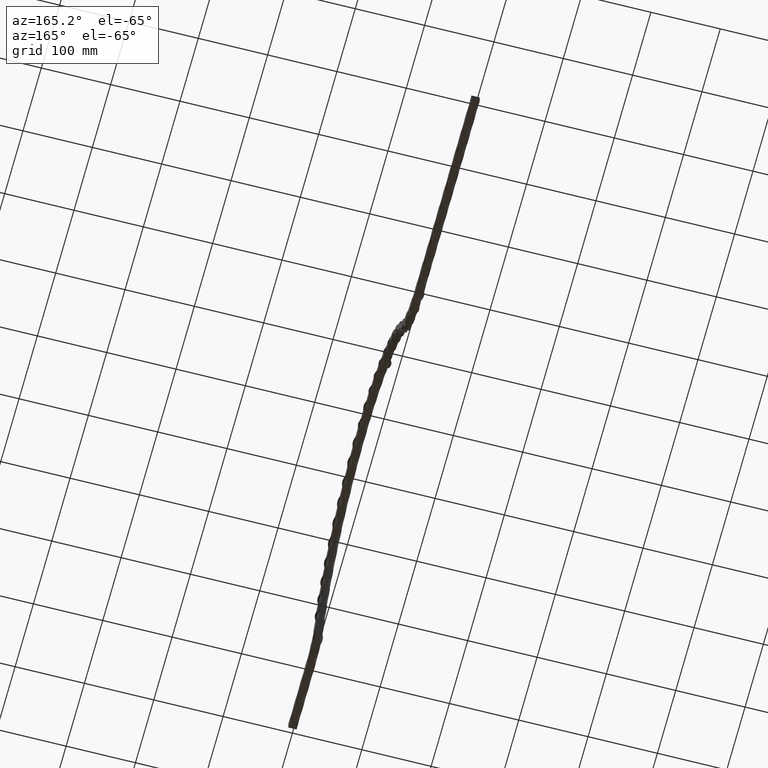
[diagram: clean part render]
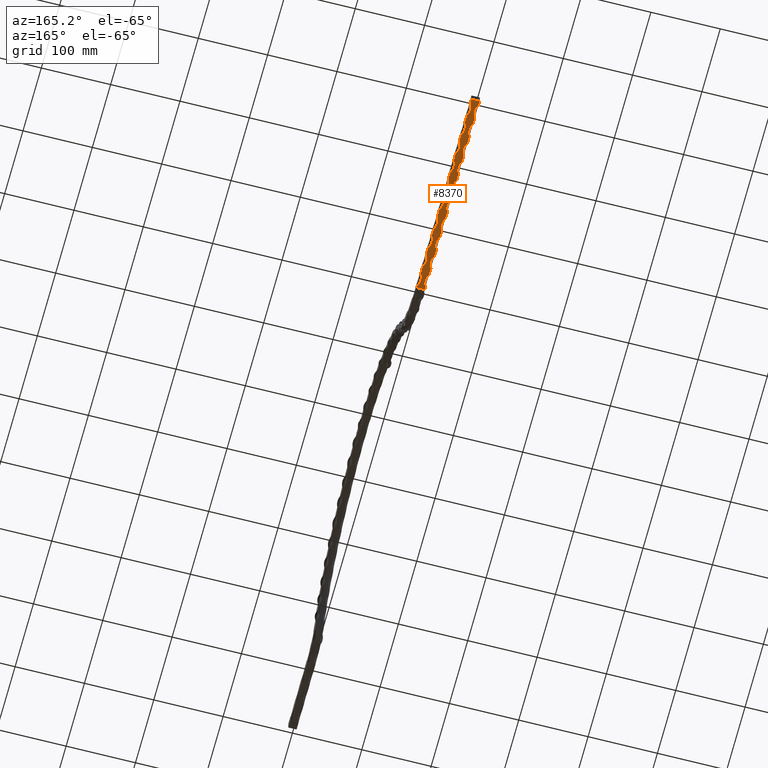
[diagram: same view with one face highlighted and labeled with its STEP entity id]
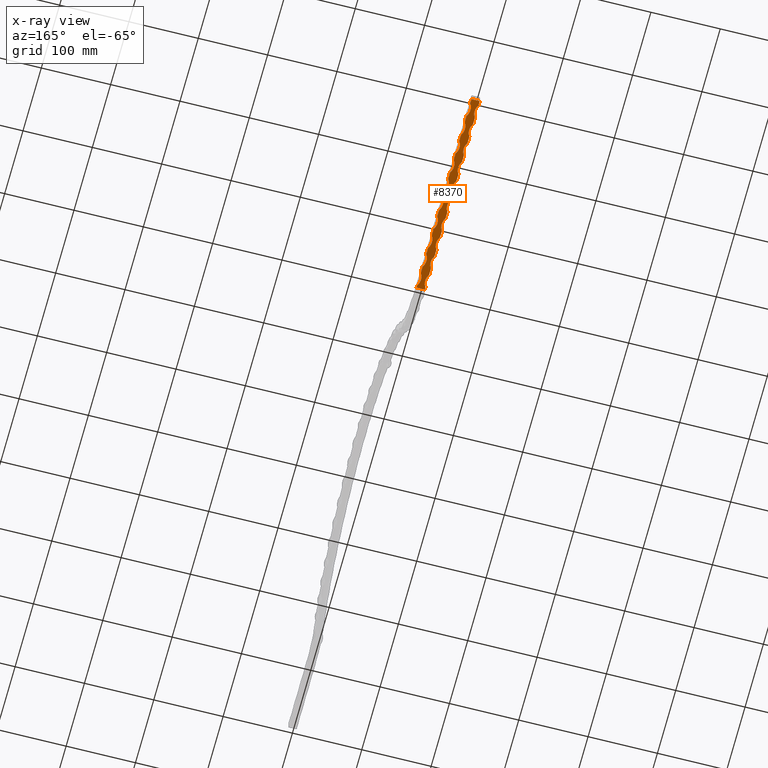
[diagram: x-ray of the same camera — body ghosted, the highlighted face saturated]
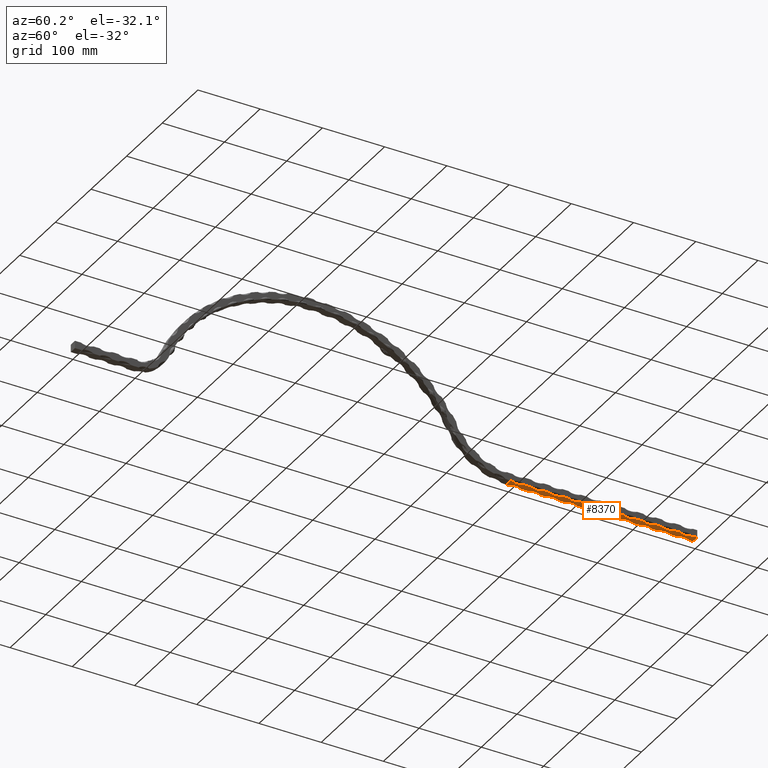
[diagram: same view with one face highlighted and labeled with its STEP entity id]
A machine part, auxiliary view. The second image highlights one B-rep face of the part: STEP entity #8370.
The next image is the same camera in x-ray: the body ghosted, the highlighted face saturated — about 0% of this face is hidden behind the body in this view.
A second angle (auxiliary view) of the same face is appended — the face is thin or edge-on in the first view.
In plain terms, the highlighted planar face has unit normal (-0, 0, -1).
Its self-contained STEP definition (entity closure, byte-faithful):
#166 = CARTESIAN_POINT ( 'NONE',  ( -6.000000000000000000, 700.0000000000001100, -6.000000000000005300 ) ) ;
#200 = EDGE_CURVE ( 'NONE', #4611, #8206, #10618, .T. ) ;
#275 = LINE ( 'NONE', #853, #11154 ) ;
#282 = VERTEX_POINT ( 'NONE', #6508 ) ;
#284 = ORIENTED_EDGE ( 'NONE', *, *, #1437, .F. ) ;
#401 = VERTEX_POINT ( 'NONE', #4940 ) ;
#456 = DIRECTION ( 'NONE',  ( 6.302298132906566100E-015, 1.000000000000000000, 4.297021454254476900E-016 ) ) ;
#465 = VERTEX_POINT ( 'NONE', #12100 ) ;
#473 = AXIS2_PLACEMENT_3D ( 'NONE', #561, #4902, #5182 ) ;
#484 = VERTEX_POINT ( 'NONE', #17748 ) ;
#521 = VERTEX_POINT ( 'NONE', #9521 ) ;
#544 = VERTEX_POINT ( 'NONE', #10171 ) ;
#561 = CARTESIAN_POINT ( 'NONE',  ( 21.16666666666666100, 803.2533592981683300, -6.000000000000062200 ) ) ;
#571 = DIRECTION ( 'NONE',  ( -4.392510819904576100E-015, 1.000000000000000000, 4.297021454254476900E-016 ) ) ;
#616 = DIRECTION ( 'NONE',  ( 0.0000000000000000000, 1.000000000000000000, 4.163336342344336500E-016 ) ) ;
#621 = CARTESIAN_POINT ( 'NONE',  ( -6.000000000000000000, 933.2533592981684500, -6.000000000000024000 ) ) ;
#642 = DIRECTION ( 'NONE',  ( -4.392510819904576100E-015, 1.000000000000000000, 4.297021454254476900E-016 ) ) ;
#658 = ORIENTED_EDGE ( 'NONE', *, *, #7874, .T. ) ;
#740 = DIRECTION ( 'NONE',  ( -1.776102201091850400E-014, 1.000000000000000000, 4.297021454254476900E-016 ) ) ;
#749 = CARTESIAN_POINT ( 'NONE',  ( 21.16666666666666100, 983.2533592981682200, -6.000000000000004400 ) ) ;
#765 = CARTESIAN_POINT ( 'NONE',  ( -6.000000000000000000, 700.0000000000001100, -6.000000000000005300 ) ) ;
#795 = CIRCLE ( 'NONE', #11377, 18.16666666666666400 ) ;
#813 = CARTESIAN_POINT ( 'NONE',  ( -6.000000000000000000, 700.0000000000001100, -6.000000000000005300 ) ) ;
#853 = CARTESIAN_POINT ( 'NONE',  ( -6.000000000000000000, 700.0000000000001100, -6.000000000000005300 ) ) ;
#934 = ORIENTED_EDGE ( 'NONE', *, *, #15356, .T. ) ;
#983 = ORIENTED_EDGE ( 'NONE', *, *, #17528, .F. ) ;
#1162 = CIRCLE ( 'NONE', #13525, 18.16666666666666400 ) ;
#1309 = ORIENTED_EDGE ( 'NONE', *, *, #8011, .F. ) ;
#1349 = DIRECTION ( 'NONE',  ( -1.776102201091850400E-014, 1.000000000000000000, 4.297021454254476900E-016 ) ) ;
#1383 = ORIENTED_EDGE ( 'NONE', *, *, #10963, .T. ) ;
#1437 = EDGE_CURVE ( 'NONE', #484, #8611, #18076, .T. ) ;
#1532 = CARTESIAN_POINT ( 'NONE',  ( -6.000000000000000000, 700.0000000000001100, -6.000000000000005300 ) ) ;
#1552 = VERTEX_POINT ( 'NONE', #8007 ) ;
#1577 = VECTOR ( 'NONE', #12447, 1000.000000000000000 ) ;
#1589 = CARTESIAN_POINT ( 'NONE',  ( 6.000000000000000000, 793.2533592981683300, -6.000000000000062200 ) ) ;
#1614 = CARTESIAN_POINT ( 'NONE',  ( -6.000000000000000000, 700.0000000000001100, -6.000000000000005300 ) ) ;
#1687 = LINE ( 'NONE', #1764, #4319 ) ;
#1703 = DIRECTION ( 'NONE',  ( -1.776102201091850400E-014, 1.000000000000000000, 4.297021454254476900E-016 ) ) ;
#1713 = ORIENTED_EDGE ( 'NONE', *, *, #6159, .F. ) ;
#1764 = CARTESIAN_POINT ( 'NONE',  ( -6.000000000000000000, 700.0000000000001100, -6.000000000000005300 ) ) ;
#1771 = ORIENTED_EDGE ( 'NONE', *, *, #9105, .F. ) ;
#1868 = EDGE_CURVE ( 'NONE', #5224, #15224, #16772, .T. ) ;
#1919 = ORIENTED_EDGE ( 'NONE', *, *, #4265, .T. ) ;
#2008 = CARTESIAN_POINT ( 'NONE',  ( -6.000000000000000000, 883.2533592981685600, -5.999999999999929800 ) ) ;
#2098 = CIRCLE ( 'NONE', #7961, 18.16666666666666400 ) ;
#2162 = LINE ( 'NONE', #16493, #16586 ) ;
#2196 = DIRECTION ( 'NONE',  ( -1.776102201091850400E-014, 1.000000000000000000, 4.297021454254476900E-016 ) ) ;
#2210 = CARTESIAN_POINT ( 'NONE',  ( -21.16666666666666100, 953.2533592981684500, -6.000000000000014200 ) ) ;
#2213 = LINE ( 'NONE', #8064, #5059 ) ;
#2243 = VERTEX_POINT ( 'NONE', #14299 ) ;
#2265 = DIRECTION ( 'NONE',  ( 0.0000000000000000000, -4.163336342344336500E-016, 1.000000000000000000 ) ) ;
#2277 = ORIENTED_EDGE ( 'NONE', *, *, #17820, .F. ) ;
#2319 = CIRCLE ( 'NONE', #13156, 18.16666666666666400 ) ;
#2346 = VERTEX_POINT ( 'NONE', #3683 ) ;
#2370 = DIRECTION ( 'NONE',  ( 0.0000000000000000000, 1.000000000000000000, 4.163336342344336500E-016 ) ) ;
#2458 = ORIENTED_EDGE ( 'NONE', *, *, #2823, .T. ) ;
#2469 = ORIENTED_EDGE ( 'NONE', *, *, #10264, .T. ) ;
#2482 = CARTESIAN_POINT ( 'NONE',  ( -6.000000000000000000, 700.0000000000001100, -6.000000000000005300 ) ) ;
#2540 = VECTOR ( 'NONE', #9480, 1000.000000000000000 ) ;
#2574 = CIRCLE ( 'NONE', #4400, 18.16666666666666400 ) ;
#2576 = CARTESIAN_POINT ( 'NONE',  ( -6.000000000000000000, 993.2533592981682200, -6.000000000000004400 ) ) ;
#2585 = CARTESIAN_POINT ( 'NONE',  ( 6.000000000000000000, 700.0000000000001100, -6.000000000000005300 ) ) ;
#2690 = VECTOR ( 'NONE', #5810, 1000.000000000000000 ) ;
#2709 = DIRECTION ( 'NONE',  ( 0.0000000000000000000, 1.000000000000000000, 4.163336342344336500E-016 ) ) ;
#2817 = VECTOR ( 'NONE', #11275, 1000.000000000000000 ) ;
#2823 = EDGE_CURVE ( 'NONE', #16721, #11752, #10868, .T. ) ;
#2913 = CARTESIAN_POINT ( 'NONE',  ( -6.000000000000000000, 700.0000000000001100, -6.000000000000005300 ) ) ;
#2957 = CARTESIAN_POINT ( 'NONE',  ( -21.16666666666666100, 833.2533592981683300, -6.000000000000053300 ) ) ;
#3135 = AXIS2_PLACEMENT_3D ( 'NONE', #11139, #4103, #1349 ) ;
#3155 = EDGE_CURVE ( 'NONE', #10118, #17560, #14828, .T. ) ;
#3226 = ORIENTED_EDGE ( 'NONE', *, *, #15465, .T. ) ;
#3295 = DIRECTION ( 'NONE',  ( 0.0000000000000000000, 1.000000000000000000, 4.163336342344336500E-016 ) ) ;
#3322 = ORIENTED_EDGE ( 'NONE', *, *, #16179, .T. ) ;
#3337 = EDGE_CURVE ( 'NONE', #16988, #544, #2162, .T. ) ;
#3465 = AXIS2_PLACEMENT_3D ( 'NONE', #15709, #10237, #456 ) ;
#3468 = CARTESIAN_POINT ( 'NONE',  ( 21.16666666666666100, 953.2533592981684500, -6.000000000000014200 ) ) ;
#3500 = DIRECTION ( 'NONE',  ( -4.392510819904576100E-015, 1.000000000000000000, 4.297021454254476900E-016 ) ) ;
#3582 = LINE ( 'NONE', #166, #17358 ) ;
#3634 = FACE_OUTER_BOUND ( 'NONE', #6412, .T. ) ;
#3666 = CARTESIAN_POINT ( 'NONE',  ( 6.000000000000000000, 700.0000000000001100, -6.000000000000005300 ) ) ;
#3683 = CARTESIAN_POINT ( 'NONE',  ( 6.000000000000000000, 873.2533592981684500, -5.999999999999933400 ) ) ;
#3719 = VECTOR ( 'NONE', #4116, 1000.000000000000000 ) ;
#3728 = CARTESIAN_POINT ( 'NONE',  ( -21.16666666666666100, 893.2533592981684500, -6.000000000000033800 ) ) ;
#3807 = CARTESIAN_POINT ( 'NONE',  ( -21.16666666666666100, 803.2533592981683300, -6.000000000000062200 ) ) ;
#3815 = AXIS2_PLACEMENT_3D ( 'NONE', #3468, #14502, #642 ) ;
#3839 = CIRCLE ( 'NONE', #3135, 18.16666666666666400 ) ;
#3858 = VECTOR ( 'NONE', #12353, 1000.000000000000000 ) ;
#4003 = VECTOR ( 'NONE', #17816, 1000.000000000000000 ) ;
#4093 = EDGE_CURVE ( 'NONE', #7004, #521, #9096, .T. ) ;
#4103 = DIRECTION ( 'NONE',  ( 0.0000000000000000000, -4.163336342344336500E-016, 1.000000000000000000 ) ) ;
#4109 = VERTEX_POINT ( 'NONE', #621 ) ;
#4116 = DIRECTION ( 'NONE',  ( 0.0000000000000000000, 1.000000000000000000, 4.163336342344336500E-016 ) ) ;
#4153 = ORIENTED_EDGE ( 'NONE', *, *, #7713, .T. ) ;
#4189 = DIRECTION ( 'NONE',  ( 0.0000000000000000000, 1.000000000000000000, 4.163336342344336500E-016 ) ) ;
#4251 = DIRECTION ( 'NONE',  ( 0.0000000000000000000, 1.000000000000000000, 4.163336342344336500E-016 ) ) ;
#4254 = ORIENTED_EDGE ( 'NONE', *, *, #5135, .T. ) ;
#4265 = EDGE_CURVE ( 'NONE', #7673, #11036, #2574, .T. ) ;
#4319 = VECTOR ( 'NONE', #12922, 1000.000000000000000 ) ;
#4400 = AXIS2_PLACEMENT_3D ( 'NONE', #2210, #9068, #740 ) ;
#4424 = VERTEX_POINT ( 'NONE', #7505 ) ;
#4440 = CARTESIAN_POINT ( 'NONE',  ( -6.000000000000000000, 943.2533592981686800, -5.999999999999904100 ) ) ;
#4457 = DIRECTION ( 'NONE',  ( 0.0000000000000000000, -4.163336342344336500E-016, 1.000000000000000000 ) ) ;
#4510 = DIRECTION ( 'NONE',  ( -4.392510819904576100E-015, 1.000000000000000000, 4.297021454254476900E-016 ) ) ;
#4515 = DIRECTION ( 'NONE',  ( 0.0000000000000000000, -4.163336342344336500E-016, 1.000000000000000000 ) ) ;
#4541 = VERTEX_POINT ( 'NONE', #13501 ) ;
#4566 = CARTESIAN_POINT ( 'NONE',  ( 6.000000000000000000, 703.2533592981683300, -6.000000000000092400 ) ) ;
#4611 = VERTEX_POINT ( 'NONE', #18093 ) ;
#4686 = DIRECTION ( 'NONE',  ( -1.000000000000000000, -0.0000000000000000000, 0.0000000000000000000 ) ) ;
#4687 = CARTESIAN_POINT ( 'NONE',  ( 21.16666666666666100, 833.2533592981683300, -6.000000000000053300 ) ) ;
#4776 = DIRECTION ( 'NONE',  ( -4.392510819904576100E-015, 1.000000000000000000, 4.297021454254476900E-016 ) ) ;
#4902 = DIRECTION ( 'NONE',  ( 0.0000000000000000000, -4.163336342344336500E-016, 1.000000000000000000 ) ) ;
#4925 = DIRECTION ( 'NONE',  ( 0.0000000000000000000, 1.000000000000000000, 4.163336342344336500E-016 ) ) ;
#4940 = CARTESIAN_POINT ( 'NONE',  ( 6.000000000000000000, 973.2533592981682200, -6.000000000000004400 ) ) ;
#5059 = VECTOR ( 'NONE', #10879, 1000.000000000000000 ) ;
#5105 = CARTESIAN_POINT ( 'NONE',  ( 6.000000000000000000, 700.0000000000001100, -6.000000000000005300 ) ) ;
#5116 = ORIENTED_EDGE ( 'NONE', *, *, #10447, .T. ) ;
#5135 = EDGE_CURVE ( 'NONE', #4109, #7673, #1687, .T. ) ;
#5182 = DIRECTION ( 'NONE',  ( -4.392510819904576100E-015, 1.000000000000000000, 4.297021454254476900E-016 ) ) ;
#5224 = VERTEX_POINT ( 'NONE', #16050 ) ;
#5364 = VECTOR ( 'NONE', #2709, 1000.000000000000000 ) ;
#5365 = VERTEX_POINT ( 'NONE', #13414 ) ;
#5421 = CARTESIAN_POINT ( 'NONE',  ( 6.000000000000000000, 823.2533592981683300, -6.000000000000053300 ) ) ;
#5601 = CARTESIAN_POINT ( 'NONE',  ( -6.000000000000000000, 1000.000000000000000, -5.999999999999880100 ) ) ;
#5717 = CIRCLE ( 'NONE', #7232, 18.16666666666666400 ) ;
#5739 = EDGE_CURVE ( 'NONE', #465, #544, #12573, .T. ) ;
#5810 = DIRECTION ( 'NONE',  ( 0.0000000000000000000, 1.000000000000000000, 4.163336342344336500E-016 ) ) ;
#5843 = CARTESIAN_POINT ( 'NONE',  ( -6.000000000000000000, 793.2533592981685600, -5.999999999999966200 ) ) ;
#5864 = DIRECTION ( 'NONE',  ( -4.392510819904576100E-015, 1.000000000000000000, 4.297021454254476900E-016 ) ) ;
#5919 = VECTOR ( 'NONE', #6482, 1000.000000000000000 ) ;
#5925 = LINE ( 'NONE', #8920, #7855 ) ;
#5965 = VERTEX_POINT ( 'NONE', #14245 ) ;
#6159 = EDGE_CURVE ( 'NONE', #2346, #4424, #12369, .T. ) ;
#6209 = DIRECTION ( 'NONE',  ( 0.0000000000000000000, -4.163336342344336500E-016, 1.000000000000000000 ) ) ;
#6224 = CARTESIAN_POINT ( 'NONE',  ( 6.000000000000000000, 913.2533592981684500, -6.000000000000024000 ) ) ;
#6345 = VERTEX_POINT ( 'NONE', #4566 ) ;
#6353 = AXIS2_PLACEMENT_3D ( 'NONE', #15651, #12812, #5864 ) ;
#6396 = DIRECTION ( 'NONE',  ( 6.302298132906566100E-015, 1.000000000000000000, 4.297021454254476900E-016 ) ) ;
#6412 = EDGE_LOOP ( 'NONE', ( #8018, #11431, #2458, #17418, #8840, #4153, #7202, #11184, #11886, #12236, #284, #16706, #1713, #15953, #10637, #17877, #13707, #8953, #983, #13685, #1309, #14340, #2277, #3226, #1771, #2469, #9633, #6714, #14642, #11735, #10758, #934, #11270, #658, #7497, #11319, #17413, #10912, #3322, #13125, #5116, #1383, #4254, #1919 ) ) ;
#6426 = EDGE_CURVE ( 'NONE', #9344, #14469, #2319, .T. ) ;
#6436 = AXIS2_PLACEMENT_3D ( 'NONE', #12004, #9184, #3500 ) ;
#6460 = DIRECTION ( 'NONE',  ( 0.0000000000000000000, 1.000000000000000000, 4.163336342344336500E-016 ) ) ;
#6482 = DIRECTION ( 'NONE',  ( 0.0000000000000000000, 1.000000000000000000, 4.163336342344336500E-016 ) ) ;
#6508 = CARTESIAN_POINT ( 'NONE',  ( -6.000000000000000000, 813.2533592981683300, -6.000000000000062200 ) ) ;
#6573 = LINE ( 'NONE', #5601, #1577 ) ;
#6714 = ORIENTED_EDGE ( 'NONE', *, *, #12999, .T. ) ;
#6927 = CIRCLE ( 'NONE', #6436, 18.16666666666666400 ) ;
#7004 = VERTEX_POINT ( 'NONE', #7708 ) ;
#7067 = CARTESIAN_POINT ( 'NONE',  ( -21.16666666666666100, 773.2533592981683300, -6.000000000000072800 ) ) ;
#7119 = CARTESIAN_POINT ( 'NONE',  ( -6.000000000000000000, 700.0000000000001100, -6.000000000000005300 ) ) ;
#7160 = VECTOR ( 'NONE', #4925, 1000.000000000000000 ) ;
#7202 = ORIENTED_EDGE ( 'NONE', *, *, #15301, .F. ) ;
#7232 = AXIS2_PLACEMENT_3D ( 'NONE', #7836, #2265, #6396 ) ;
#7242 = CARTESIAN_POINT ( 'NONE',  ( 6.000000000000000000, 853.2533592981683300, -6.000000000000043500 ) ) ;
#7266 = LINE ( 'NONE', #765, #14290 ) ;
#7303 = LINE ( 'NONE', #2482, #3858 ) ;
#7337 = DIRECTION ( 'NONE',  ( 0.0000000000000000000, -4.163336342344336500E-016, 1.000000000000000000 ) ) ;
#7394 = CIRCLE ( 'NONE', #17363, 18.16666666666666400 ) ;
#7405 = CARTESIAN_POINT ( 'NONE',  ( 6.000000000000000000, 700.0000000000001100, -6.000000000000005300 ) ) ;
#7425 = CARTESIAN_POINT ( 'NONE',  ( 6.000000000000000000, 700.0000000000001100, -6.000000000000005300 ) ) ;
#7497 = ORIENTED_EDGE ( 'NONE', *, *, #16554, .T. ) ;
#7505 = CARTESIAN_POINT ( 'NONE',  ( 6.000000000000000000, 883.2533592981684500, -6.000000000000033800 ) ) ;
#7562 = DIRECTION ( 'NONE',  ( 0.0000000000000000000, -4.163336342344336500E-016, 1.000000000000000000 ) ) ;
#7584 = DIRECTION ( 'NONE',  ( 0.0000000000000000000, 1.000000000000000000, 4.163336342344336500E-016 ) ) ;
#7673 = VERTEX_POINT ( 'NONE', #4440 ) ;
#7708 = CARTESIAN_POINT ( 'NONE',  ( -6.000000000000000000, 733.2533592981684500, -5.999999999999992000 ) ) ;
#7713 = EDGE_CURVE ( 'NONE', #5224, #401, #795, .T. ) ;
#7737 = DIRECTION ( 'NONE',  ( -4.392510819904576100E-015, 1.000000000000000000, 4.297021454254476900E-016 ) ) ;
#7836 = CARTESIAN_POINT ( 'NONE',  ( -21.16666666666666100, 713.2533592981683300, -6.000000000000092400 ) ) ;
#7855 = VECTOR ( 'NONE', #11633, 1000.000000000000000 ) ;
#7874 = EDGE_CURVE ( 'NONE', #13233, #282, #16966, .T. ) ;
#7934 = CARTESIAN_POINT ( 'NONE',  ( 6.000000000000000000, 700.0000000000001100, -6.000000000000005300 ) ) ;
#7961 = AXIS2_PLACEMENT_3D ( 'NONE', #12290, #17924, #12468 ) ;
#8007 = CARTESIAN_POINT ( 'NONE',  ( -6.000000000000000000, 763.2533592981684500, -5.999999999999978700 ) ) ;
#8011 = EDGE_CURVE ( 'NONE', #11798, #17560, #13224, .T. ) ;
#8018 = ORIENTED_EDGE ( 'NONE', *, *, #8196, .T. ) ;
#8020 = DIRECTION ( 'NONE',  ( 0.0000000000000000000, 1.000000000000000000, 4.163336342344336500E-016 ) ) ;
#8025 = CARTESIAN_POINT ( 'NONE',  ( 6.000000000000000000, 783.2533592981684500, -5.999999999999969800 ) ) ;
#8064 = CARTESIAN_POINT ( 'NONE',  ( -6.000000000000000000, 700.0000000000001100, -6.000000000000005300 ) ) ;
#8138 = EDGE_CURVE ( 'NONE', #16826, #13233, #17836, .T. ) ;
#8188 = VECTOR ( 'NONE', #616, 1000.000000000000000 ) ;
#8196 = EDGE_CURVE ( 'NONE', #11036, #2243, #7303, .T. ) ;
#8206 = VERTEX_POINT ( 'NONE', #16576 ) ;
#8247 = EDGE_CURVE ( 'NONE', #2243, #16721, #2098, .T. ) ;
#8268 = CARTESIAN_POINT ( 'NONE',  ( -6.000000000000000000, 783.2533592981683300, -6.000000000000072800 ) ) ;
#8370 = ADVANCED_FACE ( 'NONE', ( #3634 ), #15166, .T. ) ;
#8392 = DIRECTION ( 'NONE',  ( 0.0000000000000000000, -4.163336342344336500E-016, 1.000000000000000000 ) ) ;
#8430 = DIRECTION ( 'NONE',  ( 0.0000000000000000000, -4.163336342344336500E-016, 1.000000000000000000 ) ) ;
#8611 = VERTEX_POINT ( 'NONE', #6224 ) ;
#8840 = ORIENTED_EDGE ( 'NONE', *, *, #1868, .F. ) ;
#8855 = CARTESIAN_POINT ( 'NONE',  ( -6.000000000000000000, 703.2533592981684500, -6.000000000000004400 ) ) ;
#8887 = EDGE_CURVE ( 'NONE', #8206, #5965, #3839, .T. ) ;
#8920 = CARTESIAN_POINT ( 'NONE',  ( 6.000000000000000000, 700.0000000000001100, -6.000000000000005300 ) ) ;
#8953 = ORIENTED_EDGE ( 'NONE', *, *, #12891, .T. ) ;
#8969 = EDGE_CURVE ( 'NONE', #11901, #4611, #14535, .T. ) ;
#9068 = DIRECTION ( 'NONE',  ( 0.0000000000000000000, -4.163336342344336500E-016, 1.000000000000000000 ) ) ;
#9096 = CIRCLE ( 'NONE', #3465, 18.16666666666666400 ) ;
#9105 = EDGE_CURVE ( 'NONE', #17167, #6345, #16058, .T. ) ;
#9107 = CARTESIAN_POINT ( 'NONE',  ( 6.000000000000000000, 700.0000000000001100, -6.000000000000005300 ) ) ;
#9138 = CIRCLE ( 'NONE', #9588, 18.16666666666666400 ) ;
#9161 = CARTESIAN_POINT ( 'NONE',  ( 6.000000000000000000, 733.2533592981683300, -6.000000000000082600 ) ) ;
#9164 = LINE ( 'NONE', #3666, #9377 ) ;
#9184 = DIRECTION ( 'NONE',  ( 0.0000000000000000000, -4.163336342344336500E-016, 1.000000000000000000 ) ) ;
#9204 = CARTESIAN_POINT ( 'NONE',  ( -6.000000000000000000, 723.2533592981683300, -6.000000000000092400 ) ) ;
#9258 = EDGE_CURVE ( 'NONE', #16988, #8611, #10557, .T. ) ;
#9344 = VERTEX_POINT ( 'NONE', #15183 ) ;
#9377 = VECTOR ( 'NONE', #2370, 1000.000000000000000 ) ;
#9393 = CARTESIAN_POINT ( 'NONE',  ( 6.000000000000000000, 723.2533592981684500, -5.999999999999995600 ) ) ;
#9419 = CARTESIAN_POINT ( 'NONE',  ( 6.000000000000000000, 700.0000000000001100, -6.000000000000005300 ) ) ;
#9458 = VERTEX_POINT ( 'NONE', #14510 ) ;
#9480 = DIRECTION ( 'NONE',  ( 0.0000000000000000000, 1.000000000000000000, 4.163336342344336500E-016 ) ) ;
#9504 = CARTESIAN_POINT ( 'NONE',  ( 6.000000000000000000, 1000.000000000000000, -5.999999999999880100 ) ) ;
#9521 = CARTESIAN_POINT ( 'NONE',  ( -6.000000000000000000, 753.2533592981683300, -6.000000000000082600 ) ) ;
#9588 = AXIS2_PLACEMENT_3D ( 'NONE', #16142, #7562, #7737 ) ;
#9633 = ORIENTED_EDGE ( 'NONE', *, *, #10650, .T. ) ;
#9641 = CARTESIAN_POINT ( 'NONE',  ( 6.000000000000000000, 700.0000000000001100, -6.000000000000005300 ) ) ;
#9669 = CARTESIAN_POINT ( 'NONE',  ( -6.000000000000000000, 963.2533592981684500, -6.000000000000014200 ) ) ;
#9670 = DIRECTION ( 'NONE',  ( 0.0000000000000000000, 1.000000000000000000, 4.163336342344336500E-016 ) ) ;
#10005 = DIRECTION ( 'NONE',  ( 0.0000000000000000000, -4.163336342344336500E-016, 1.000000000000000000 ) ) ;
#10118 = VERTEX_POINT ( 'NONE', #8025 ) ;
#10171 = CARTESIAN_POINT ( 'NONE',  ( 6.000000000000000000, 943.2533592981684500, -6.000000000000014200 ) ) ;
#10237 = DIRECTION ( 'NONE',  ( 0.0000000000000000000, -4.163336342344336500E-016, 1.000000000000000000 ) ) ;
#10264 = EDGE_CURVE ( 'NONE', #17167, #5365, #7266, .T. ) ;
#10447 = EDGE_CURVE ( 'NONE', #9458, #4541, #13847, .T. ) ;
#10536 = DIRECTION ( 'NONE',  ( 0.0000000000000000000, 1.000000000000000000, 4.163336342344336500E-016 ) ) ;
#10557 = CIRCLE ( 'NONE', #12565, 18.16666666666666400 ) ;
#10618 = LINE ( 'NONE', #1532, #2817 ) ;
#10637 = ORIENTED_EDGE ( 'NONE', *, *, #12603, .F. ) ;
#10650 = EDGE_CURVE ( 'NONE', #5365, #13392, #3582, .T. ) ;
#10732 = CIRCLE ( 'NONE', #16349, 18.16666666666666400 ) ;
#10758 = ORIENTED_EDGE ( 'NONE', *, *, #16615, .T. ) ;
#10829 = VERTEX_POINT ( 'NONE', #2008 ) ;
#10868 = LINE ( 'NONE', #813, #7160 ) ;
#10879 = DIRECTION ( 'NONE',  ( 0.0000000000000000000, 1.000000000000000000, 4.163336342344336500E-016 ) ) ;
#10912 = ORIENTED_EDGE ( 'NONE', *, *, #8887, .T. ) ;
#10950 = DIRECTION ( 'NONE',  ( 0.0000000000000000000, 1.000000000000000000, 4.163336342344336500E-016 ) ) ;
#10963 = EDGE_CURVE ( 'NONE', #4541, #4109, #1162, .T. ) ;
#11036 = VERTEX_POINT ( 'NONE', #9669 ) ;
#11139 = CARTESIAN_POINT ( 'NONE',  ( -21.16666666666666100, 863.2533592981683300, -6.000000000000043500 ) ) ;
#11154 = VECTOR ( 'NONE', #6460, 1000.000000000000000 ) ;
#11184 = ORIENTED_EDGE ( 'NONE', *, *, #5739, .T. ) ;
#11270 = ORIENTED_EDGE ( 'NONE', *, *, #8138, .T. ) ;
#11275 = DIRECTION ( 'NONE',  ( 0.0000000000000000000, 1.000000000000000000, 4.163336342344336500E-016 ) ) ;
#11313 = CARTESIAN_POINT ( 'NONE',  ( -21.16666666666666100, 923.2533592981684500, -6.000000000000024000 ) ) ;
#11315 = CARTESIAN_POINT ( 'NONE',  ( -6.000000000000000000, 700.0000000000001100, -6.000000000000005300 ) ) ;
#11319 = ORIENTED_EDGE ( 'NONE', *, *, #8969, .T. ) ;
#11352 = AXIS2_PLACEMENT_3D ( 'NONE', #13051, #14479, #4776 ) ;
#11377 = AXIS2_PLACEMENT_3D ( 'NONE', #749, #13258, #571 ) ;
#11431 = ORIENTED_EDGE ( 'NONE', *, *, #8247, .T. ) ;
#11548 = DIRECTION ( 'NONE',  ( -4.392510819904576100E-015, 1.000000000000000000, 4.297021454254476900E-016 ) ) ;
#11633 = DIRECTION ( 'NONE',  ( 0.0000000000000000000, 1.000000000000000000, 4.163336342344336500E-016 ) ) ;
#11735 = ORIENTED_EDGE ( 'NONE', *, *, #4093, .T. ) ;
#11743 = EDGE_CURVE ( 'NONE', #10829, #9458, #10732, .T. ) ;
#11752 = VERTEX_POINT ( 'NONE', #11820 ) ;
#11798 = VERTEX_POINT ( 'NONE', #17652 ) ;
#11820 = CARTESIAN_POINT ( 'NONE',  ( -6.000000000000000000, 1000.000000000000000, -5.999999999999880100 ) ) ;
#11886 = ORIENTED_EDGE ( 'NONE', *, *, #3337, .F. ) ;
#11901 = VERTEX_POINT ( 'NONE', #14794 ) ;
#12004 = CARTESIAN_POINT ( 'NONE',  ( 21.16666666666666100, 893.2533592981684500, -6.000000000000033800 ) ) ;
#12018 = DIRECTION ( 'NONE',  ( 0.0000000000000000000, -4.163336342344336500E-016, 1.000000000000000000 ) ) ;
#12100 = CARTESIAN_POINT ( 'NONE',  ( 6.000000000000000000, 963.2533592981685600, -5.999999999999895200 ) ) ;
#12172 = VERTEX_POINT ( 'NONE', #7242 ) ;
#12202 = VERTEX_POINT ( 'NONE', #15758 ) ;
#12236 = ORIENTED_EDGE ( 'NONE', *, *, #9258, .T. ) ;
#12290 = CARTESIAN_POINT ( 'NONE',  ( -21.16666666666666100, 983.2533592981682200, -6.000000000000004400 ) ) ;
#12353 = DIRECTION ( 'NONE',  ( 0.0000000000000000000, 1.000000000000000000, 4.163336342344336500E-016 ) ) ;
#12369 = LINE ( 'NONE', #9419, #13240 ) ;
#12447 = DIRECTION ( 'NONE',  ( -1.000000000000000000, -0.0000000000000000000, 0.0000000000000000000 ) ) ;
#12468 = DIRECTION ( 'NONE',  ( -1.776102201091850400E-014, 1.000000000000000000, 4.297021454254476900E-016 ) ) ;
#12565 = AXIS2_PLACEMENT_3D ( 'NONE', #15565, #4457, #4510 ) ;
#12573 = CIRCLE ( 'NONE', #3815, 18.16666666666666400 ) ;
#12603 = EDGE_CURVE ( 'NONE', #9344, #12172, #17325, .T. ) ;
#12730 = DIRECTION ( 'NONE',  ( -1.776102201091850400E-014, 1.000000000000000000, 4.297021454254476900E-016 ) ) ;
#12746 = CARTESIAN_POINT ( 'NONE',  ( 6.000000000000000000, 933.2533592981685600, -5.999999999999907600 ) ) ;
#12812 = DIRECTION ( 'NONE',  ( 0.0000000000000000000, -4.163336342344336500E-016, 1.000000000000000000 ) ) ;
#12842 = CARTESIAN_POINT ( 'NONE',  ( 21.16666666666666100, 743.2533592981683300, -6.000000000000082600 ) ) ;
#12869 = DIRECTION ( 'NONE',  ( 6.302298132906566100E-015, 1.000000000000000000, 4.297021454254476900E-016 ) ) ;
#12891 = EDGE_CURVE ( 'NONE', #12202, #14536, #16651, .T. ) ;
#12922 = DIRECTION ( 'NONE',  ( 0.0000000000000000000, 1.000000000000000000, 4.163336342344336500E-016 ) ) ;
#12968 = VECTOR ( 'NONE', #7584, 1000.000000000000000 ) ;
#12999 = EDGE_CURVE ( 'NONE', #13392, #15871, #5717, .T. ) ;
#13051 = CARTESIAN_POINT ( 'NONE',  ( 21.16666666666666100, 713.2533592981683300, -6.000000000000092400 ) ) ;
#13125 = ORIENTED_EDGE ( 'NONE', *, *, #11743, .T. ) ;
#13156 = AXIS2_PLACEMENT_3D ( 'NONE', #4687, #7337, #11548 ) ;
#13195 = VECTOR ( 'NONE', #3295, 1000.000000000000000 ) ;
#13224 = LINE ( 'NONE', #2585, #5364 ) ;
#13233 = VERTEX_POINT ( 'NONE', #5843 ) ;
#13240 = VECTOR ( 'NONE', #9670, 1000.000000000000000 ) ;
#13258 = DIRECTION ( 'NONE',  ( 0.0000000000000000000, -4.163336342344336500E-016, 1.000000000000000000 ) ) ;
#13367 = EDGE_CURVE ( 'NONE', #11798, #13520, #15121, .T. ) ;
#13392 = VERTEX_POINT ( 'NONE', #8855 ) ;
#13414 = CARTESIAN_POINT ( 'NONE',  ( -6.000000000000000000, 700.0000000000001100, -6.000000000000005300 ) ) ;
#13501 = CARTESIAN_POINT ( 'NONE',  ( -6.000000000000000000, 913.2533592981686800, -5.999999999999915600 ) ) ;
#13520 = VERTEX_POINT ( 'NONE', #9161 ) ;
#13525 = AXIS2_PLACEMENT_3D ( 'NONE', #11313, #8430, #12730 ) ;
#13550 = DIRECTION ( 'NONE',  ( -1.776102201091850400E-014, 1.000000000000000000, 4.297021454254476900E-016 ) ) ;
#13658 = AXIS2_PLACEMENT_3D ( 'NONE', #12842, #4515, #14272 ) ;
#13685 = ORIENTED_EDGE ( 'NONE', *, *, #3155, .T. ) ;
#13707 = ORIENTED_EDGE ( 'NONE', *, *, #17107, .F. ) ;
#13847 = LINE ( 'NONE', #11315, #13195 ) ;
#14245 = CARTESIAN_POINT ( 'NONE',  ( -6.000000000000000000, 873.2533592981683300, -6.000000000000043500 ) ) ;
#14272 = DIRECTION ( 'NONE',  ( -4.392510819904576100E-015, 1.000000000000000000, 4.297021454254476900E-016 ) ) ;
#14290 = VECTOR ( 'NONE', #4686, 1000.000000000000000 ) ;
#14299 = CARTESIAN_POINT ( 'NONE',  ( -6.000000000000000000, 973.2533592981684500, -5.999999999999891600 ) ) ;
#14340 = ORIENTED_EDGE ( 'NONE', *, *, #13367, .T. ) ;
#14469 = VERTEX_POINT ( 'NONE', #5421 ) ;
#14479 = DIRECTION ( 'NONE',  ( 0.0000000000000000000, -4.163336342344336500E-016, 1.000000000000000000 ) ) ;
#14502 = DIRECTION ( 'NONE',  ( 0.0000000000000000000, -4.163336342344336500E-016, 1.000000000000000000 ) ) ;
#14510 = CARTESIAN_POINT ( 'NONE',  ( -6.000000000000000000, 903.2533592981684500, -6.000000000000033800 ) ) ;
#14535 = CIRCLE ( 'NONE', #15391, 18.16666666666666400 ) ;
#14536 = VERTEX_POINT ( 'NONE', #1589 ) ;
#14642 = ORIENTED_EDGE ( 'NONE', *, *, #17871, .T. ) ;
#14794 = CARTESIAN_POINT ( 'NONE',  ( -6.000000000000000000, 823.2533592981685600, -5.999999999999953800 ) ) ;
#14797 = AXIS2_PLACEMENT_3D ( 'NONE', #3807, #12018, #13550 ) ;
#14822 = CARTESIAN_POINT ( 'NONE',  ( 6.000000000000000000, 700.0000000000001100, -6.000000000000005300 ) ) ;
#14828 = CIRCLE ( 'NONE', #6353, 18.16666666666666400 ) ;
#14852 = CIRCLE ( 'NONE', #11352, 18.16666666666666400 ) ;
#14877 = LINE ( 'NONE', #5105, #5919 ) ;
#14900 = VECTOR ( 'NONE', #10536, 1000.000000000000000 ) ;
#15112 = EDGE_CURVE ( 'NONE', #2346, #12172, #9138, .T. ) ;
#15121 = CIRCLE ( 'NONE', #13658, 18.16666666666666400 ) ;
#15149 = AXIS2_PLACEMENT_3D ( 'NONE', #1614, #15357, #4251 ) ;
#15166 = PLANE ( 'NONE',  #15149 ) ;
#15183 = CARTESIAN_POINT ( 'NONE',  ( 6.000000000000000000, 843.2533592981684500, -5.999999999999945800 ) ) ;
#15224 = VERTEX_POINT ( 'NONE', #9504 ) ;
#15301 = EDGE_CURVE ( 'NONE', #465, #401, #15733, .T. ) ;
#15356 = EDGE_CURVE ( 'NONE', #1552, #16826, #7394, .T. ) ;
#15357 = DIRECTION ( 'NONE',  ( -0.0000000000000000000, 4.163336342344336500E-016, -1.000000000000000000 ) ) ;
#15391 = AXIS2_PLACEMENT_3D ( 'NONE', #2957, #8392, #1703 ) ;
#15465 = EDGE_CURVE ( 'NONE', #15920, #6345, #14852, .T. ) ;
#15489 = EDGE_CURVE ( 'NONE', #484, #4424, #6927, .T. ) ;
#15565 = CARTESIAN_POINT ( 'NONE',  ( 21.16666666666666100, 923.2533592981684500, -6.000000000000024000 ) ) ;
#15651 = CARTESIAN_POINT ( 'NONE',  ( 21.16666666666666100, 773.2533592981683300, -6.000000000000072800 ) ) ;
#15709 = CARTESIAN_POINT ( 'NONE',  ( -21.16666666666666100, 743.2533592981683300, -6.000000000000082600 ) ) ;
#15733 = LINE ( 'NONE', #9641, #3719 ) ;
#15758 = CARTESIAN_POINT ( 'NONE',  ( 6.000000000000000000, 813.2533592981684500, -5.999999999999957400 ) ) ;
#15871 = VERTEX_POINT ( 'NONE', #9204 ) ;
#15920 = VERTEX_POINT ( 'NONE', #9393 ) ;
#15953 = ORIENTED_EDGE ( 'NONE', *, *, #15112, .T. ) ;
#15992 = LINE ( 'NONE', #16250, #14900 ) ;
#16050 = CARTESIAN_POINT ( 'NONE',  ( 6.000000000000000000, 993.2533592981683300, -5.999999999999882800 ) ) ;
#16058 = LINE ( 'NONE', #9107, #12968 ) ;
#16142 = CARTESIAN_POINT ( 'NONE',  ( 21.16666666666666100, 863.2533592981683300, -6.000000000000043500 ) ) ;
#16179 = EDGE_CURVE ( 'NONE', #5965, #10829, #17770, .T. ) ;
#16250 = CARTESIAN_POINT ( 'NONE',  ( -6.000000000000000000, 700.0000000000001100, -6.000000000000005300 ) ) ;
#16349 = AXIS2_PLACEMENT_3D ( 'NONE', #3728, #6209, #2196 ) ;
#16493 = CARTESIAN_POINT ( 'NONE',  ( 6.000000000000000000, 700.0000000000001100, -6.000000000000005300 ) ) ;
#16554 = EDGE_CURVE ( 'NONE', #282, #11901, #15992, .T. ) ;
#16576 = CARTESIAN_POINT ( 'NONE',  ( -6.000000000000000000, 853.2533592981685600, -5.999999999999942300 ) ) ;
#16586 = VECTOR ( 'NONE', #8020, 1000.000000000000000 ) ;
#16615 = EDGE_CURVE ( 'NONE', #521, #1552, #275, .T. ) ;
#16651 = CIRCLE ( 'NONE', #473, 18.16666666666666400 ) ;
#16706 = ORIENTED_EDGE ( 'NONE', *, *, #15489, .T. ) ;
#16721 = VERTEX_POINT ( 'NONE', #2576 ) ;
#16772 = LINE ( 'NONE', #7405, #16984 ) ;
#16826 = VERTEX_POINT ( 'NONE', #8268 ) ;
#16857 = EDGE_CURVE ( 'NONE', #15224, #11752, #6573, .T. ) ;
#16966 = CIRCLE ( 'NONE', #14797, 18.16666666666666400 ) ;
#16984 = VECTOR ( 'NONE', #10950, 1000.000000000000000 ) ;
#16988 = VERTEX_POINT ( 'NONE', #12746 ) ;
#17107 = EDGE_CURVE ( 'NONE', #12202, #14469, #5925, .T. ) ;
#17167 = VERTEX_POINT ( 'NONE', #14822 ) ;
#17325 = LINE ( 'NONE', #7934, #4003 ) ;
#17358 = VECTOR ( 'NONE', #4189, 1000.000000000000000 ) ;
#17363 = AXIS2_PLACEMENT_3D ( 'NONE', #7067, #10005, #12869 ) ;
#17413 = ORIENTED_EDGE ( 'NONE', *, *, #200, .T. ) ;
#17418 = ORIENTED_EDGE ( 'NONE', *, *, #16857, .F. ) ;
#17528 = EDGE_CURVE ( 'NONE', #10118, #14536, #14877, .T. ) ;
#17560 = VERTEX_POINT ( 'NONE', #18079 ) ;
#17652 = CARTESIAN_POINT ( 'NONE',  ( 6.000000000000000000, 753.2533592981684500, -5.999999999999984000 ) ) ;
#17748 = CARTESIAN_POINT ( 'NONE',  ( 6.000000000000000000, 903.2533592981685600, -5.999999999999921000 ) ) ;
#17770 = LINE ( 'NONE', #2913, #2690 ) ;
#17816 = DIRECTION ( 'NONE',  ( 0.0000000000000000000, 1.000000000000000000, 4.163336342344336500E-016 ) ) ;
#17820 = EDGE_CURVE ( 'NONE', #15920, #13520, #9164, .T. ) ;
#17836 = LINE ( 'NONE', #7119, #2540 ) ;
#17871 = EDGE_CURVE ( 'NONE', #15871, #7004, #2213, .T. ) ;
#17877 = ORIENTED_EDGE ( 'NONE', *, *, #6426, .T. ) ;
#17924 = DIRECTION ( 'NONE',  ( 0.0000000000000000000, -4.163336342344336500E-016, 1.000000000000000000 ) ) ;
#18076 = LINE ( 'NONE', #7425, #8188 ) ;
#18079 = CARTESIAN_POINT ( 'NONE',  ( 6.000000000000000000, 763.2533592981683300, -6.000000000000072800 ) ) ;
#18093 = CARTESIAN_POINT ( 'NONE',  ( -6.000000000000000000, 843.2533592981683300, -6.000000000000053300 ) ) ;